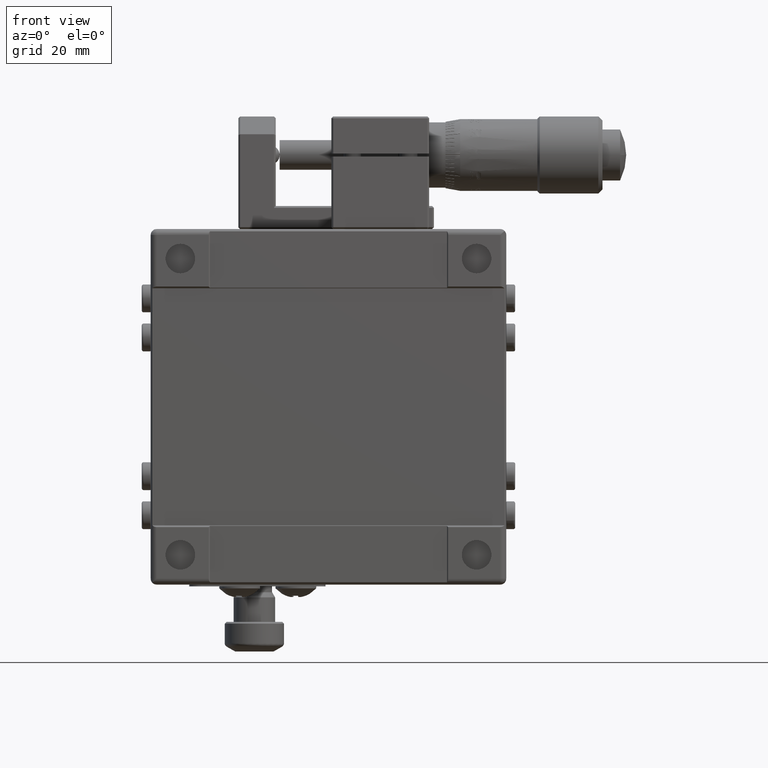
[diagram: clean part render]
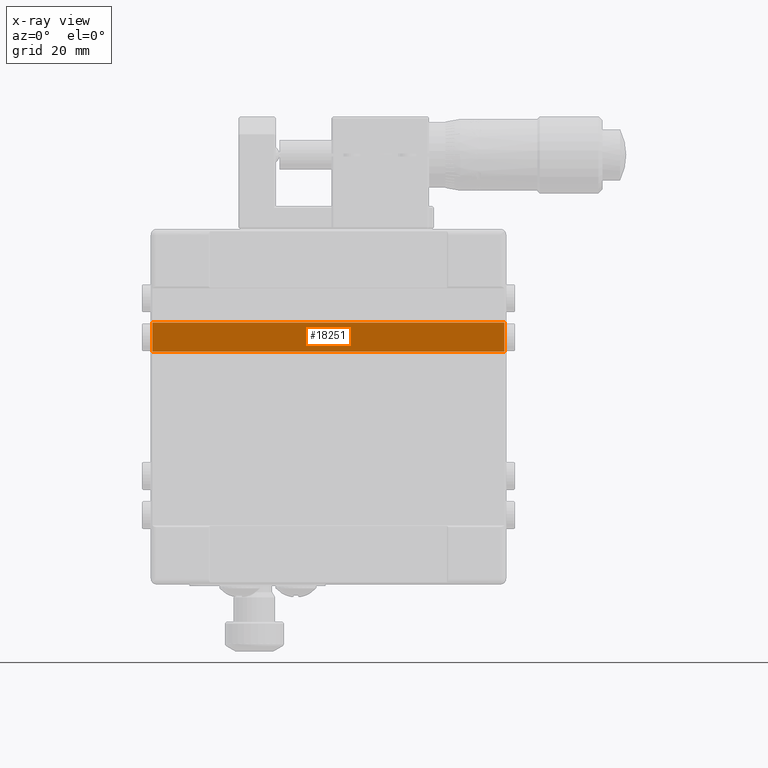
[diagram: x-ray — body ghosted, one internal face saturated and labeled with its STEP entity id]
A machine part, front view, then the same camera in x-ray: the body is ghosted and one INTERNAL B-rep face — a face not visible from any outside direction — is saturated and labeled: STEP entity #18251.
In plain terms, the highlighted planar face has unit normal (-0, -1, -0).
Its self-contained STEP definition (entity closure, byte-faithful):
#663 = VECTOR ( 'NONE', #39529, 1000.000000000000000 ) ;
#1670 = CARTESIAN_POINT ( 'NONE',  ( 31.37353433835849614, 2.606365159128980036, 14.20000000000000107 ) ) ;
#3393 = VERTEX_POINT ( 'NONE', #16091 ) ;
#4436 = DIRECTION ( 'NONE',  ( -4.930380657631319405E-32, -1.972152263052529951E-31, 1.000000000000000000 ) ) ;
#6136 = EDGE_CURVE ( 'NONE', #12991, #39973, #26495, .T. ) ;
#8788 = PLANE ( 'NONE',  #13175 ) ;
#9449 = CARTESIAN_POINT ( 'NONE',  ( -28.32646566164154933, 2.606365159128980036, 14.50000000000000000 ) ) ;
#9502 = ORIENTED_EDGE ( 'NONE', *, *, #36373, .T. ) ;
#10451 = VECTOR ( 'NONE', #4436, 1000.000000000000000 ) ;
#12963 = FACE_OUTER_BOUND ( 'NONE', #31881, .T. ) ;
#12991 = VERTEX_POINT ( 'NONE', #38046 ) ;
#13072 = LINE ( 'NONE', #9449, #10451 ) ;
#13175 = AXIS2_PLACEMENT_3D ( 'NONE', #22650, #25777, #17435 ) ;
#13867 = CARTESIAN_POINT ( 'NONE',  ( 31.37353433835849614, 2.606365159128980036, 9.299999999999998934 ) ) ;
#15570 = ORIENTED_EDGE ( 'NONE', *, *, #17720, .T. ) ;
#16091 = CARTESIAN_POINT ( 'NONE',  ( 31.07353433835850254, 2.606365159128980036, 9.299999999999998934 ) ) ;
#17435 = DIRECTION ( 'NONE',  ( 0.000000000000000000, 1.972152263052529951E-31, -1.000000000000000000 ) ) ;
#17720 = EDGE_CURVE ( 'NONE', #50386, #12991, #13072, .T. ) ;
#17966 = EDGE_CURVE ( 'NONE', #3393, #50386, #38102, .T. ) ;
#18093 = CARTESIAN_POINT ( 'NONE',  ( 31.07353433835850254, 2.606365159128980036, 9.000000000000000000 ) ) ;
#18251 = ADVANCED_FACE ( 'NONE', ( #12963 ), #8788, .F. ) ;
#22650 = CARTESIAN_POINT ( 'NONE',  ( 31.37353433835849614, 2.606365159128980036, 14.50000000000000000 ) ) ;
#25777 = DIRECTION ( 'NONE',  ( -3.601856771534920069E-32, -1.000000000000000000, -1.972152263052529951E-31 ) ) ;
#26495 = LINE ( 'NONE', #1670, #46645 ) ;
#26726 = LINE ( 'NONE', #18093, #663 ) ;
#27069 = ORIENTED_EDGE ( 'NONE', *, *, #17966, .T. ) ;
#30647 = CARTESIAN_POINT ( 'NONE',  ( -28.32646566164154933, 2.606365159128980036, 9.299999999999998934 ) ) ;
#31881 = EDGE_LOOP ( 'NONE', ( #27069, #15570, #40032, #9502 ) ) ;
#32987 = CARTESIAN_POINT ( 'NONE',  ( 31.07353433835850254, 2.606365159128980036, 14.20000000000000107 ) ) ;
#36373 = EDGE_CURVE ( 'NONE', #39973, #3393, #26726, .T. ) ;
#38046 = CARTESIAN_POINT ( 'NONE',  ( -28.32646566164154933, 2.606365159128980036, 14.20000000000000107 ) ) ;
#38102 = LINE ( 'NONE', #13867, #46052 ) ;
#39529 = DIRECTION ( 'NONE',  ( 4.930380657631319405E-32, 1.972152263052529951E-31, -1.000000000000000000 ) ) ;
#39973 = VERTEX_POINT ( 'NONE', #32987 ) ;
#40032 = ORIENTED_EDGE ( 'NONE', *, *, #6136, .T. ) ;
#46052 = VECTOR ( 'NONE', #52008, 1000.000000000000000 ) ;
#46645 = VECTOR ( 'NONE', #52891, 1000.000000000000000 ) ;
#50386 = VERTEX_POINT ( 'NONE', #30647 ) ;
#52008 = DIRECTION ( 'NONE',  ( -1.000000000000000000, -3.601856771534915142E-32, 1.479114197289395821E-31 ) ) ;
#52891 = DIRECTION ( 'NONE',  ( 1.000000000000000000, 3.601856771534915142E-32, -1.479114197289395821E-31 ) ) ;